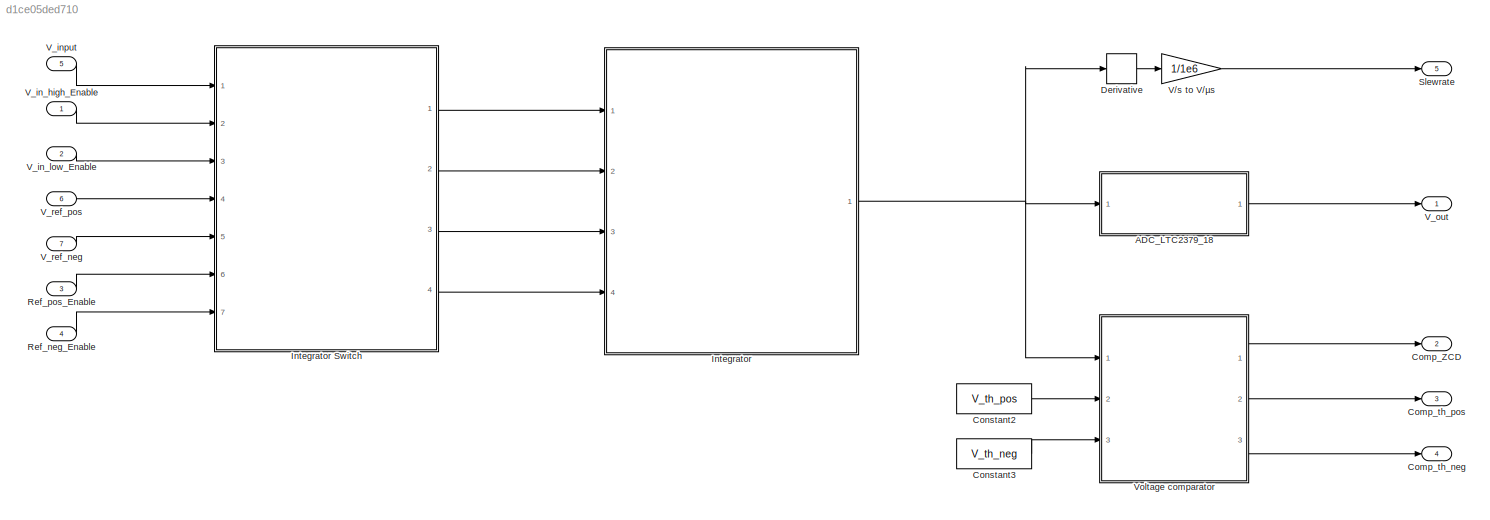
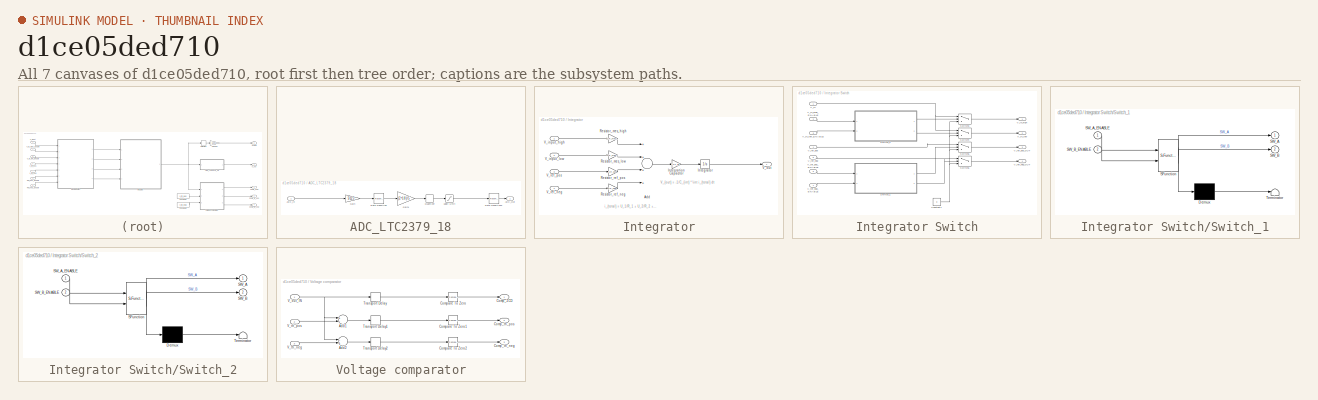
[diagram: thumbnail index - all 7 canvases of the model, root first then tree order]
MODEL slx_d1ce05ded710
KIND model
BLOCK [SubSystem] ADC_LTC2379_18
  FunctionWithSeparateData = off
  MaskHideContents = off
  MinAlgLoopOccurrences = off
  Opaque = off
  Ports = [1, 1]
  PropExecContextOutsideSubsystem = off
  RTWSystemCode = Auto
  RequestExecContextInheritance = off
BLOCK [Saturate] ADC_LTC2379_18/18Bit Limit
  InputPortMap = u0
  LowerLimit = -(2^18)+1
  OutDataTypeStr = int32
  Ports = [1, 1]
  UpperLimit = (2^18)-1
BLOCK [Inport] ADC_LTC2379_18/ADC_In
  IconDisplay = Port number
BLOCK [Outport] ADC_LTC2379_18/ADC_Out
  IconDisplay = Port number
BLOCK [Gain] ADC_LTC2379_18/Gain
  Gain = 5/12.5
  OutDataTypeStr = Inherit: Inherit via internal rule
  ParamDataTypeStr = Inherit: Inherit via internal rule
  SaturateOnIntegerOverflow = off
BLOCK [Gain] ADC_LTC2379_18/Gain1
  Gain = (2^18)/5
  OutDataTypeStr = Inherit: Inherit via internal rule
  ParamDataTypeStr = Inherit: Inherit via internal rule
  SaturateOnIntegerOverflow = off
BLOCK [Quantizer] ADC_LTC2379_18/Quantizer
  QuantizationInterval = 1
BLOCK [RateTransition] ADC_LTC2379_18/Rate Transition
  OutPortSampleTime = 1/1.6e6
BLOCK [RateTransition] ADC_LTC2379_18/Rate Transition1
BLOCK [Outport] Comp_ZCD
  IconDisplay = Port number
  OutDataTypeStr = boolean
  Port = 2
BLOCK [Outport] Comp_th_neg
  IconDisplay = Port number
  OutDataTypeStr = boolean
  Port = 4
BLOCK [Outport] Comp_th_pos
  IconDisplay = Port number
  OutDataTypeStr = boolean
  Port = 3
BLOCK [Constant] Constant2
  Value = V_th_pos
BLOCK [Constant] Constant3
  Value = V_th_neg
BLOCK [Derivative] Derivative
BLOCK [SubSystem] Integrator
  FunctionWithSeparateData = off
  MaskHideContents = off
  MinAlgLoopOccurrences = off
  Opaque = off
  Ports = [4, 1]
  PropExecContextOutsideSubsystem = off
  RTWSystemCode = Auto
  RequestExecContextInheritance = off
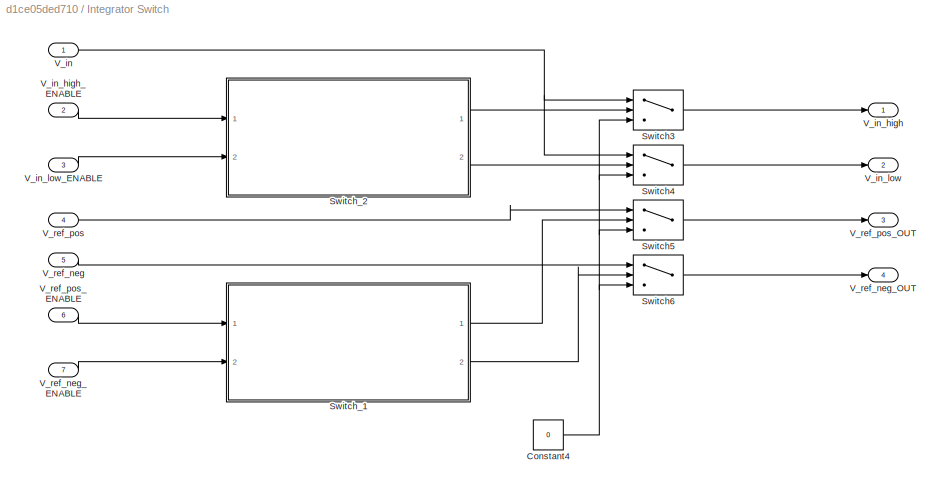
BLOCK [SubSystem] Integrator Switch
  FunctionWithSeparateData = off
  MaskHideContents = off
  MinAlgLoopOccurrences = off
  Opaque = off
  Ports = [7, 4]
  PropExecContextOutsideSubsystem = off
  RTWSystemCode = Auto
  RequestExecContextInheritance = off
BLOCK [Constant] Integrator Switch/Constant4
  Value = 0
BLOCK [Switch] Integrator Switch/Switch3
  InputSameDT = off
  SaturateOnIntegerOverflow = off
BLOCK [Switch] Integrator Switch/Switch4
  InputSameDT = off
  SaturateOnIntegerOverflow = off
BLOCK [Switch] Integrator Switch/Switch5
  InputSameDT = off
  SaturateOnIntegerOverflow = off
BLOCK [Switch] Integrator Switch/Switch6
  InputSameDT = off
  SaturateOnIntegerOverflow = off
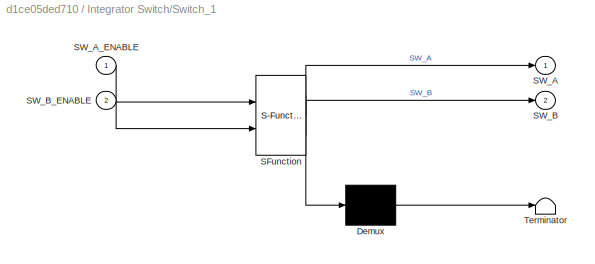
BLOCK [SubSystem] Integrator Switch/Switch_1
  ErrorFcn = Stateflow.Translate.translate
  FunctionWithSeparateData = off
  MaskHideContents = off
  MinAlgLoopOccurrences = off
  Opaque = off
  PermitHierarchicalResolution = ExplicitOnly
  Ports = [2, 2]
  PropExecContextOutsideSubsystem = off
  RTWSystemCode = Auto
  RequestExecContextInheritance = off
  SFBlockType = Chart
  TreatAsAtomicUnit = on
BLOCK [Demux] Integrator Switch/Switch_1/ Demux 
  Outputs = 1
  Ports = [1, 1]
BLOCK [S-Function] Integrator Switch/Switch_1/ SFunction 
  EnableBusSupport = on
  FunctionName = sf_sfun
  Parameters = sw_t_bbm,sw_t_off,sw_t_on
  PortCounts = [2 3]
  Ports = [2, 3]
  Tag = Stateflow S-Function voltage_integrator 1
BLOCK [Terminator] Integrator Switch/Switch_1/ Terminator 
BLOCK [Outport] Integrator Switch/Switch_1/SW_A
  IconDisplay = Port number
BLOCK [Inport] Integrator Switch/Switch_1/SW_A_ENABLE
  IconDisplay = Port number
BLOCK [Outport] Integrator Switch/Switch_1/SW_B
  IconDisplay = Port number
  Port = 2
BLOCK [Inport] Integrator Switch/Switch_1/SW_B_ENABLE
  IconDisplay = Port number
  Port = 2
BLOCK [SubSystem] Integrator Switch/Switch_2
  ErrorFcn = Stateflow.Translate.translate
  FunctionWithSeparateData = off
  MaskHideContents = off
  MinAlgLoopOccurrences = off
  Opaque = off
  PermitHierarchicalResolution = ExplicitOnly
  Ports = [2, 2]
  PropExecContextOutsideSubsystem = off
  RTWSystemCode = Auto
  RequestExecContextInheritance = off
  SFBlockType = Chart
  TreatAsAtomicUnit = on
BLOCK [Demux] Integrator Switch/Switch_2/ Demux 
  Outputs = 1
  Ports = [1, 1]
BLOCK [S-Function] Integrator Switch/Switch_2/ SFunction 
  EnableBusSupport = on
  FunctionName = sf_sfun
  Parameters = sw_t_bbm,sw_t_off,sw_t_on
  PortCounts = [2 3]
  Ports = [2, 3]
  Tag = Stateflow S-Function voltage_integrator 2
BLOCK [Terminator] Integrator Switch/Switch_2/ Terminator 
BLOCK [Outport] Integrator Switch/Switch_2/SW_A
  IconDisplay = Port number
BLOCK [Inport] Integrator Switch/Switch_2/SW_A_ENABLE
  IconDisplay = Port number
BLOCK [Outport] Integrator Switch/Switch_2/SW_B
  IconDisplay = Port number
  Port = 2
BLOCK [Inport] Integrator Switch/Switch_2/SW_B_ENABLE
  IconDisplay = Port number
  Port = 2
BLOCK [Inport] Integrator Switch/V_in
  IconDisplay = Port number
BLOCK [Outport] Integrator Switch/V_in_high
  IconDisplay = Port number
BLOCK [Inport] Integrator Switch/V_in_high_ENABLE
  IconDisplay = Port number
  Port = 2
BLOCK [Outport] Integrator Switch/V_in_low
  IconDisplay = Port number
  Port = 2
BLOCK [Inport] Integrator Switch/V_in_low_ENABLE
  IconDisplay = Port number
  Port = 3
BLOCK [Inport] Integrator Switch/V_ref_neg
  IconDisplay = Port number
  Port = 5
BLOCK [Inport] Integrator Switch/V_ref_neg_ENABLE
  IconDisplay = Port number
  Port = 7
BLOCK [Outport] Integrator Switch/V_ref_neg_OUT
  IconDisplay = Port number
  Port = 4
BLOCK [Inport] Integrator Switch/V_ref_pos
  IconDisplay = Port number
  Port = 4
BLOCK [Inport] Integrator Switch/V_ref_pos_ENABLE
  IconDisplay = Port number
  Port = 6
BLOCK [Outport] Integrator Switch/V_ref_pos_OUT
  IconDisplay = Port number
  Port = 3
BLOCK [Sum] Integrator/Add
  InputSameDT = off
  Inputs = ++++
  OutDataTypeStr = Inherit: Inherit via internal rule
  Ports = [4, 1]
  SaturateOnIntegerOverflow = off
BLOCK [Gain] Integrator/Integration Capacitor
  Gain = -1/C_int
  OutDataTypeStr = Inherit: Inherit via internal rule
  ParamDataTypeStr = Inherit: Inherit via internal rule
  SaturateOnIntegerOverflow = off
BLOCK [Integrator] Integrator/Integrator
  LimitOutput = on
  LowerSaturationLimit = V_int_min
  Ports = [1, 1]
  UpperSaturationLimit = V_int_max
BLOCK [Gain] Integrator/Resistor_mes_high
  Gain = 1/R_mes_high
  OutDataTypeStr = Inherit: Inherit via internal rule
  ParamDataTypeStr = Inherit: Inherit via internal rule
  SaturateOnIntegerOverflow = off
BLOCK [Gain] Integrator/Resistor_mes_low
  Gain = 1/R_mes_low
  OutDataTypeStr = Inherit: Inherit via internal rule
  ParamDataTypeStr = Inherit: Inherit via internal rule
  SaturateOnIntegerOverflow = off
BLOCK [Gain] Integrator/Resistor_ref_neg
  Gain = 1/R_neg
  OutDataTypeStr = Inherit: Inherit via internal rule
  ParamDataTypeStr = Inherit: Inherit via internal rule
  SaturateOnIntegerOverflow = off
BLOCK [Gain] Integrator/Resistor_ref_pos
  Gain = 1/R_pos
  OutDataTypeStr = Inherit: Inherit via internal rule
  ParamDataTypeStr = Inherit: Inherit via internal rule
  SaturateOnIntegerOverflow = off
BLOCK [Inport] Integrator/V_input_high
  IconDisplay = Port number
BLOCK [Inport] Integrator/V_input_low
  IconDisplay = Port number
  Port = 2
BLOCK [Outport] Integrator/V_out
  IconDisplay = Port number
BLOCK [Inport] Integrator/V_ref_neg
  IconDisplay = Port number
  Port = 4
BLOCK [Inport] Integrator/V_ref_pos
  IconDisplay = Port number
  Port = 3
BLOCK [Inport] Ref_neg_Enable
  IconDisplay = Port number
  OutDataTypeStr = boolean
  Port = 4
BLOCK [Inport] Ref_pos_Enable
  IconDisplay = Port number
  OutDataTypeStr = boolean
  Port = 3
BLOCK [Outport] Slewrate
  IconDisplay = Port number
  Port = 5
BLOCK [Gain] V//s to V//µs
  Gain = 1/1e6
  OutDataTypeStr = Inherit: Inherit via internal rule
  ParamDataTypeStr = Inherit: Inherit via internal rule
  SaturateOnIntegerOverflow = off
BLOCK [Inport] V_in_high_Enable
  IconDisplay = Port number
  OutDataTypeStr = boolean
BLOCK [Inport] V_in_low_Enable
  IconDisplay = Port number
  OutDataTypeStr = boolean
  Port = 2
BLOCK [Inport] V_input
  IconDisplay = Port number
  Port = 5
BLOCK [Outport] V_out
  IconDisplay = Port number
BLOCK [Inport] V_ref_neg
  IconDisplay = Port number
  Port = 7
BLOCK [Inport] V_ref_pos
  IconDisplay = Port number
  Port = 6
BLOCK [SubSystem] Voltage comparator
  FunctionWithSeparateData = off
  MaskHideContents = off
  MinAlgLoopOccurrences = off
  Opaque = off
  Ports = [3, 3]
  PropExecContextOutsideSubsystem = off
  RTWSystemCode = Auto
  RequestExecContextInheritance = off
BLOCK [Sum] Voltage comparator/Add1
  InputSameDT = off
  Inputs = +-
  OutDataTypeStr = Inherit: Inherit via internal rule
  Ports = [2, 1]
  SaturateOnIntegerOverflow = off
BLOCK [Sum] Voltage comparator/Add2
  InputSameDT = off
  Inputs = -+
  OutDataTypeStr = Inherit: Inherit via internal rule
  Ports = [2, 1]
  SaturateOnIntegerOverflow = off
BLOCK [Outport] Voltage comparator/Comp_ZCD
  IconDisplay = Port number
BLOCK [Outport] Voltage comparator/Comp_th_neg
  IconDisplay = Port number
  Port = 3
BLOCK [Outport] Voltage comparator/Comp_th_pos
  IconDisplay = Port number
  Port = 2
BLOCK [Reference] Voltage comparator/Compare To Zero  REF=simulink/Logic and Bit
Operations/Compare
To Zero
  OutDataTypeStr = boolean
  Ports = [1, 1]
  SourceBlock = simulink/Logic and Bit\nOperations/Compare\nTo Zero
  SourceType = Compare To Zero
  ZeroCross = on
  relop = >=
BLOCK [Reference] Voltage comparator/Compare To Zero1  REF=simulink/Logic and Bit
Operations/Compare
To Zero
  OutDataTypeStr = boolean
  Ports = [1, 1]
  SourceBlock = simulink/Logic and Bit\nOperations/Compare\nTo Zero
  SourceType = Compare To Zero
  ZeroCross = on
  relop = >=
BLOCK [Reference] Voltage comparator/Compare To Zero2  REF=simulink/Logic and Bit
Operations/Compare
To Zero
  OutDataTypeStr = boolean
  Ports = [1, 1]
  SourceBlock = simulink/Logic and Bit\nOperations/Compare\nTo Zero
  SourceType = Compare To Zero
  ZeroCross = on
  relop = >=
BLOCK [TransportDelay] Voltage comparator/Transport Delay
  DelayTime = t_delay_comp
  Ports = [1, 1]
BLOCK [TransportDelay] Voltage comparator/Transport Delay1
  DelayTime = t_delay_comp
  Ports = [1, 1]
BLOCK [TransportDelay] Voltage comparator/Transport Delay2
  DelayTime = t_delay_comp
  Ports = [1, 1]
BLOCK [Inport] Voltage comparator/V_out_IN
  IconDisplay = Port number
BLOCK [Inport] Voltage comparator/V_th_neg
  IconDisplay = Port number
  Port = 3
BLOCK [Inport] Voltage comparator/V_th_pos
  IconDisplay = Port number
  Port = 2
ANNOTATION Integrator: V_{out} = -1/C_{int} * \int i_{total} dt
ANNOTATION Integrator: i_{total} = U_1/R_1 + U_2/R_2 +...
LINE ADC_LTC2379_18/18Bit Limit:1 -> ADC_LTC2379_18/Rate Transition1:1
LINE ADC_LTC2379_18/ADC_In:1 -> ADC_LTC2379_18/Gain:1
LINE ADC_LTC2379_18/Gain1:1 -> ADC_LTC2379_18/Quantizer:1
LINE ADC_LTC2379_18/Gain:1 -> ADC_LTC2379_18/Rate Transition:1
LINE ADC_LTC2379_18/Quantizer:1 -> ADC_LTC2379_18/18Bit Limit:1
LINE ADC_LTC2379_18/Rate Transition1:1 -> ADC_LTC2379_18/ADC_Out:1
LINE ADC_LTC2379_18/Rate Transition:1 -> ADC_LTC2379_18/Gain1:1
LINE ADC_LTC2379_18:1 -> V_out:1
LINE Constant2:1 -> Voltage comparator:2
LINE Constant3:1 -> Voltage comparator:3
LINE Derivative:1 -> V//s to V//µs:1
NET Integrator Switch/Constant4:1 -> Integrator Switch/Switch3:3, Integrator Switch/Switch4:3, Integrator Switch/Switch5:3, Integrator Switch/Switch6:3
LINE Integrator Switch/Switch3:1 -> Integrator Switch/V_in_high:1
LINE Integrator Switch/Switch4:1 -> Integrator Switch/V_in_low:1
LINE Integrator Switch/Switch5:1 -> Integrator Switch/V_ref_pos_OUT:1
LINE Integrator Switch/Switch6:1 -> Integrator Switch/V_ref_neg_OUT:1
LINE Integrator Switch/Switch_1:1 -> Integrator Switch/Switch5:2
LINE Integrator Switch/Switch_1:2 -> Integrator Switch/Switch6:2
LINE Integrator Switch/Switch_2:1 -> Integrator Switch/Switch3:2
LINE Integrator Switch/Switch_2:2 -> Integrator Switch/Switch4:2
NET Integrator Switch/V_in:1 -> Integrator Switch/Switch3:1, Integrator Switch/Switch4:1
LINE Integrator Switch/V_in_high_ENABLE:1 -> Integrator Switch/Switch_2:1
LINE Integrator Switch/V_in_low_ENABLE:1 -> Integrator Switch/Switch_2:2
LINE Integrator Switch/V_ref_neg:1 -> Integrator Switch/Switch6:1
LINE Integrator Switch/V_ref_neg_ENABLE:1 -> Integrator Switch/Switch_1:2
LINE Integrator Switch/V_ref_pos:1 -> Integrator Switch/Switch5:1
LINE Integrator Switch/V_ref_pos_ENABLE:1 -> Integrator Switch/Switch_1:1
LINE Integrator Switch:1 -> Integrator:1
LINE Integrator Switch:2 -> Integrator:2
LINE Integrator Switch:3 -> Integrator:3
LINE Integrator Switch:4 -> Integrator:4
LINE Integrator/Add:1 -> Integrator/Integration Capacitor:1
LINE Integrator/Integration Capacitor:1 -> Integrator/Integrator:1
LINE Integrator/Integrator:1 -> Integrator/V_out:1
LINE Integrator/Resistor_mes_high:1 -> Integrator/Add:1
LINE Integrator/Resistor_mes_low:1 -> Integrator/Add:2
LINE Integrator/Resistor_ref_neg:1 -> Integrator/Add:4
LINE Integrator/Resistor_ref_pos:1 -> Integrator/Add:3
LINE Integrator/V_input_high:1 -> Integrator/Resistor_mes_high:1
LINE Integrator/V_input_low:1 -> Integrator/Resistor_mes_low:1
LINE Integrator/V_ref_neg:1 -> Integrator/Resistor_ref_neg:1
LINE Integrator/V_ref_pos:1 -> Integrator/Resistor_ref_pos:1
NET Integrator:1 -> ADC_LTC2379_18:1, Derivative:1, Voltage comparator:1
LINE Ref_neg_Enable:1 -> Integrator Switch:7
LINE Ref_pos_Enable:1 -> Integrator Switch:6
LINE V//s to V//µs:1 -> Slewrate:1
LINE V_in_high_Enable:1 -> Integrator Switch:2
LINE V_in_low_Enable:1 -> Integrator Switch:3
LINE V_input:1 -> Integrator Switch:1
LINE V_ref_neg:1 -> Integrator Switch:5
LINE V_ref_pos:1 -> Integrator Switch:4
LINE Voltage comparator/Add1:1 -> Voltage comparator/Transport Delay1:1
LINE Voltage comparator/Add2:1 -> Voltage comparator/Transport Delay2:1
LINE Voltage comparator/Compare To Zero1:1 -> Voltage comparator/Comp_th_pos:1
LINE Voltage comparator/Compare To Zero2:1 -> Voltage comparator/Comp_th_neg:1
LINE Voltage comparator/Compare To Zero:1 -> Voltage comparator/Comp_ZCD:1
LINE Voltage comparator/Transport Delay1:1 -> Voltage comparator/Compare To Zero1:1
LINE Voltage comparator/Transport Delay2:1 -> Voltage comparator/Compare To Zero2:1
LINE Voltage comparator/Transport Delay:1 -> Voltage comparator/Compare To Zero:1
NET Voltage comparator/V_out_IN:1 -> Voltage comparator/Add1:1, Voltage comparator/Add2:1, Voltage comparator/Transport Delay:1
LINE Voltage comparator/V_th_neg:1 -> Voltage comparator/Add2:2
LINE Voltage comparator/V_th_pos:1 -> Voltage comparator/Add1:2
LINE Voltage comparator:1 -> Comp_ZCD:1
LINE Voltage comparator:2 -> Comp_th_pos:1
LINE Voltage comparator:3 -> Comp_th_neg:1
note: NET lines group one-source signal fan-out (src -> all destinations, sorted); 1:1 wires keep LINE
